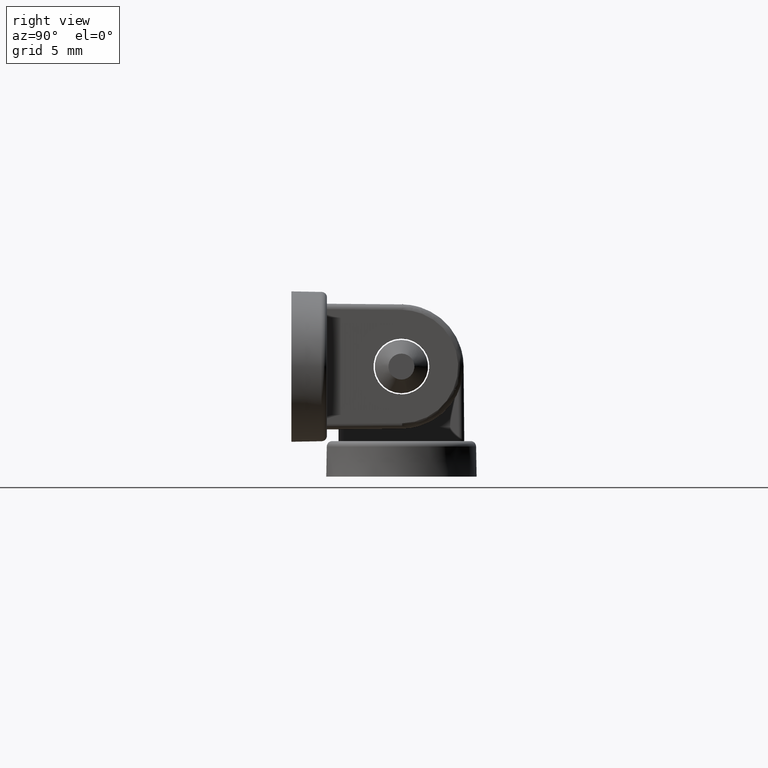
[diagram: clean part render]
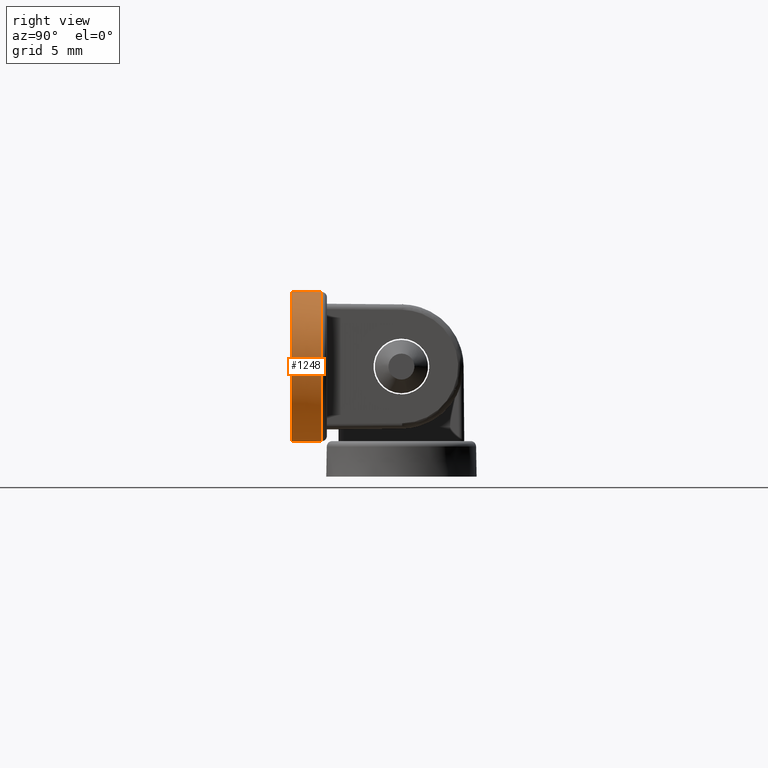
[diagram: same view with one face highlighted and labeled with its STEP entity id]
A machine part, right view. The second image highlights one B-rep face of the part: STEP entity #1248.
In plain terms, the highlighted conical surface has half-angle 1 deg.
Its self-contained STEP definition (entity closure, byte-faithful):
#44=CONICAL_SURFACE('',#1371,5.49996953903123,1.);
#91=LINE('',#1965,#163);
#93=LINE('',#1972,#165);
#163=VECTOR('',#1539,2.20731714766779);
#165=VECTOR('',#1549,2.20731714766777);
#318=FACE_OUTER_BOUND('',#411,.T.);
#411=EDGE_LOOP('',(#991,#992,#993,#994));
#490=CIRCLE('',#1310,5.50003046560873);
#517=CIRCLE('',#1370,5.46150746961165);
#565=VERTEX_POINT('',#1908);
#566=VERTEX_POINT('',#1909);
#592=VERTEX_POINT('',#1963);
#593=VERTEX_POINT('',#1971);
#680=EDGE_CURVE('',#565,#566,#490,.T.);
#707=EDGE_CURVE('',#592,#566,#91,.T.);
#711=EDGE_CURVE('',#593,#565,#93,.T.);
#753=EDGE_CURVE('',#592,#593,#517,.T.);
#991=ORIENTED_EDGE('',*,*,#707,.F.);
#992=ORIENTED_EDGE('',*,*,#753,.T.);
#993=ORIENTED_EDGE('',*,*,#711,.T.);
#994=ORIENTED_EDGE('',*,*,#680,.T.);
#1248=ADVANCED_FACE('',(#318),#44,.T.);
#1310=AXIS2_PLACEMENT_3D('',#1910,#1492,#1493);
#1370=AXIS2_PLACEMENT_3D('',#2504,#1648,#1649);
#1371=AXIS2_PLACEMENT_3D('',#2505,#1650,#1651);
#1492=DIRECTION('center_axis',(-1.22464679914735E-16,-4.44089209850063E-16,
-1.));
#1493=DIRECTION('ref_axis',(1.,0.,-1.22464679914735E-16));
#1539=DIRECTION('',(1.22446027950813E-16,-0.0174524064372831,0.999847695156391));
#1549=DIRECTION('',(1.25651983002939E-16,0.017452406437284,0.999847695156391));
#1648=DIRECTION('center_axis',(1.22464679914735E-16,4.44089209850063E-16,
1.));
#1649=DIRECTION('ref_axis',(1.,0.,-1.22464679914735E-16));
#1650=DIRECTION('center_axis',(1.22464679914735E-16,4.44089209850063E-16,
1.));
#1651=DIRECTION('ref_axis',(1.,-1.22464679914735E-16,-1.22464679914735E-16));
#1908=CARTESIAN_POINT('',(19.5,13.5500304656119,8.05000000000083));
#1909=CARTESIAN_POINT('',(19.5,2.54996953439469,8.05000000000083));
#1910=CARTESIAN_POINT('Origin',(19.5,8.05000000000319,8.05000000000083));
#1963=CARTESIAN_POINT('',(19.5,2.58849253039179,5.84301903742601));
#1965=CARTESIAN_POINT('',(19.5,2.55003046097218,8.04650951871338));
#1971=CARTESIAN_POINT('',(19.5,13.511507469615,5.84301903742603));
#1972=CARTESIAN_POINT('',(19.5,13.5499695390344,8.04650951871337));
#2504=CARTESIAN_POINT('Origin',(19.5,8.05000000000318,5.84301903742606));
#2505=CARTESIAN_POINT('Origin',(19.5,8.05000000000319,8.04650951871337));